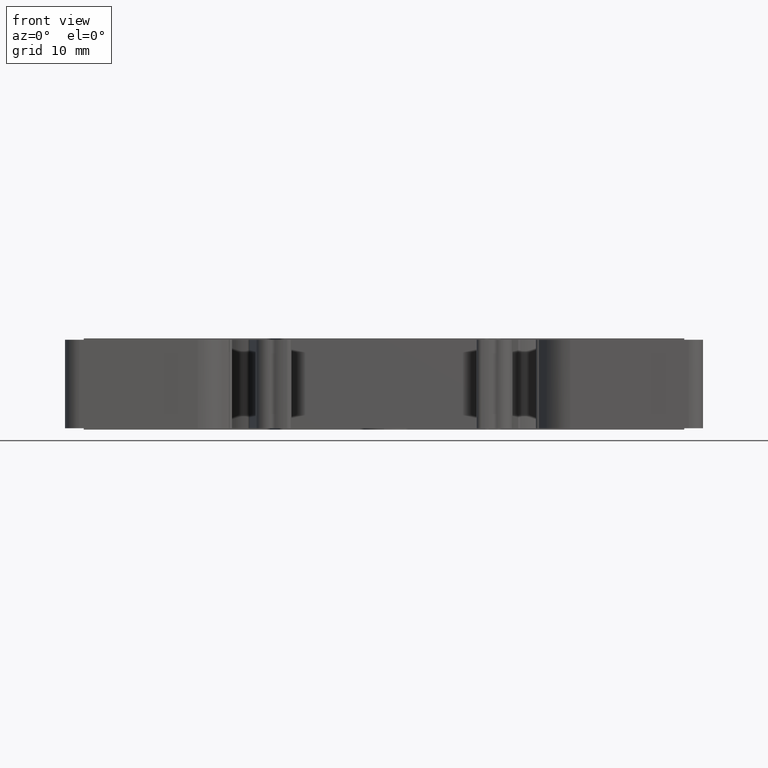
[diagram: clean part render]
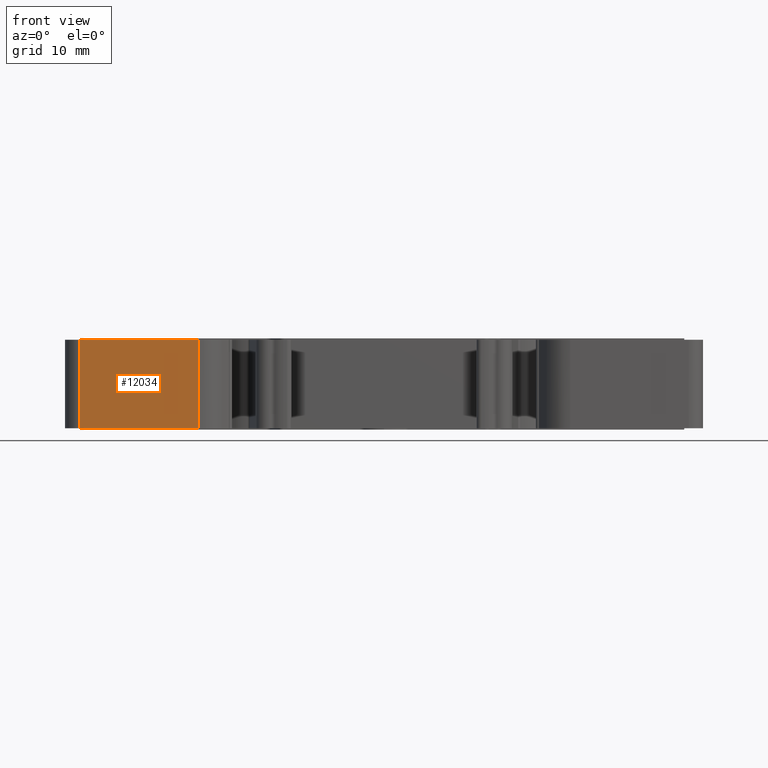
[diagram: same view with one face highlighted and labeled with its STEP entity id]
A machine part, front view. The second image highlights one B-rep face of the part: STEP entity #12034.
In plain terms, the highlighted planar face has unit normal (-0, -1, 0).
Its self-contained STEP definition (entity closure, byte-faithful):
#1308 = VERTEX_POINT ( 'NONE', #11340 ) ;
#1317 = VERTEX_POINT ( 'NONE', #11347 ) ;
#1359 = VERTEX_POINT ( 'NONE', #11436 ) ;
#1399 = VERTEX_POINT ( 'NONE', #11473 ) ;
#4949 = B_SPLINE_CURVE_WITH_KNOTS ( 'NONE', 3,
 ( #5550, #5568, #5590, #5591 ),
 .UNSPECIFIED., .F., .F.,
 ( 4, 4 ),
 ( 0.0000000000000000000, 1.000000000000000000 ),
 .UNSPECIFIED. ) ;
#5550 = CARTESIAN_POINT ( 'NONE',  ( 159.9544903718505400, -4.393872035835475000, -16.44999999999999900 ) ) ;
#5556 = CARTESIAN_POINT ( 'NONE',  ( 179.3232703937800100, -4.393864750705622800, -25.64999999999999900 ) ) ;
#5557 = DIRECTION ( 'NONE',  ( 1.000000000000000000, 0.0000000000000000000, -0.0000000000000000000 ) ) ;
#5568 = CARTESIAN_POINT ( 'NONE',  ( 155.8442268295857800, -4.393869649074486200, -16.44999999999999900 ) ) ;
#5576 = LINE ( 'NONE', #5556, #12983 ) ;
#5590 = CARTESIAN_POINT ( 'NONE',  ( 151.7339632873210500, -4.393867262313497300, -16.44999999999999900 ) ) ;
#5591 = CARTESIAN_POINT ( 'NONE',  ( 147.6236997450563400, -4.393864800644376300, -16.44999999999999900 ) ) ;
#9169 = EDGE_LOOP ( 'NONE', ( #17258, #17242, #17291, #17299 ) ) ;
#9373 = LINE ( 'NONE', #9401, #13764 ) ;
#9394 = DIRECTION ( 'NONE',  ( -0.0000000000000000000, -0.0000000000000000000, -1.000000000000000000 ) ) ;
#9401 = CARTESIAN_POINT ( 'NONE',  ( 147.6236997450563100, -4.393864875552508500, -17.89999999999999900 ) ) ;
#9459 = CARTESIAN_POINT ( 'NONE',  ( 159.9544903718505400, -4.393872035835475000, -17.89999999999999900 ) ) ;
#9478 = LINE ( 'NONE', #9459, #12980 ) ;
#9500 = DIRECTION ( 'NONE',  ( 0.0000000000000000000, 0.0000000000000000000, -1.000000000000000000 ) ) ;
#11340 = CARTESIAN_POINT ( 'NONE',  ( 147.6236997450563700, -4.393864781917343100, -25.64999999999999900 ) ) ;
#11347 = CARTESIAN_POINT ( 'NONE',  ( 159.9544903718505400, -4.393872035835475900, -25.64999999999999900 ) ) ;
#11436 = CARTESIAN_POINT ( 'NONE',  ( 147.6236997450563400, -4.393864800644376300, -16.44999999999999900 ) ) ;
#11473 = CARTESIAN_POINT ( 'NONE',  ( 159.9544903718505400, -4.393872035835475000, -16.44999999999999900 ) ) ;
#12034 = ADVANCED_FACE ( 'NONE', ( #13961 ), #13959, .T. ) ;
#12162 = EDGE_CURVE ( 'NONE', #1359, #1308, #9373, .T. ) ;
#12180 = EDGE_CURVE ( 'NONE', #1399, #1317, #9478, .T. ) ;
#12208 = EDGE_CURVE ( 'NONE', #1308, #1317, #5576, .T. ) ;
#12210 = EDGE_CURVE ( 'NONE', #1399, #1359, #4949, .T. ) ;
#12980 = VECTOR ( 'NONE', #9500, 1000.000000000000000 ) ;
#12983 = VECTOR ( 'NONE', #5557, 1000.000000000000000 ) ;
#13764 = VECTOR ( 'NONE', #9394, 1000.000000000000000 ) ;
#13857 = AXIS2_PLACEMENT_3D ( 'NONE', #13977, #13981, #13982 ) ;
#13959 = PLANE ( 'NONE',  #13857 ) ;
#13961 = FACE_OUTER_BOUND ( 'NONE', #9169, .T. ) ;
#13977 = CARTESIAN_POINT ( 'NONE',  ( 179.3232977290744800, -4.393883282976520200, -17.89999999999999900 ) ) ;
#13981 = DIRECTION ( 'NONE',  ( -5.806832004656893400E-007, -0.9999999999998314700, 0.0000000000000000000 ) ) ;
#13982 = DIRECTION ( 'NONE',  ( 0.9999999999998313600, -5.806832004656892300E-007, 0.0000000000000000000 ) ) ;
#17242 = ORIENTED_EDGE ( 'NONE', *, *, #12210, .T. ) ;
#17258 = ORIENTED_EDGE ( 'NONE', *, *, #12180, .F. ) ;
#17291 = ORIENTED_EDGE ( 'NONE', *, *, #12162, .T. ) ;
#17299 = ORIENTED_EDGE ( 'NONE', *, *, #12208, .T. ) ;